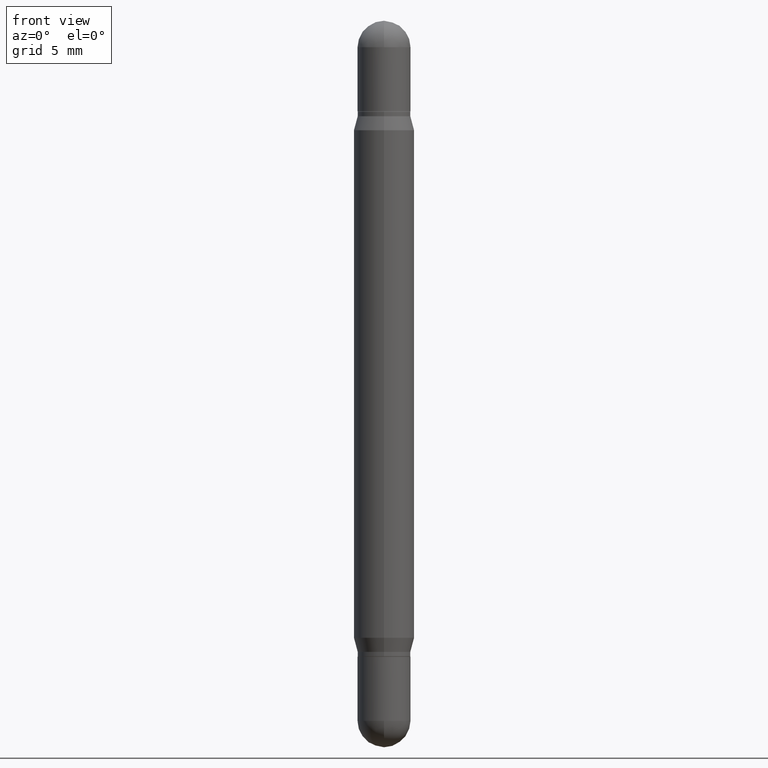
[diagram: clean part render]
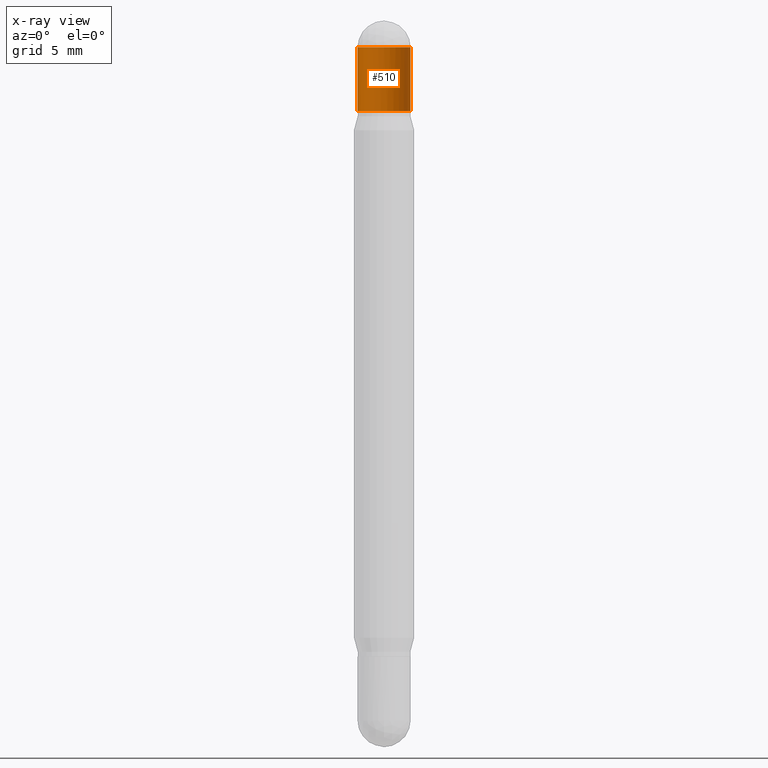
[diagram: x-ray — body ghosted, one internal face saturated and labeled with its STEP entity id]
A machine part, front view, then the same camera in x-ray: the body is ghosted and one INTERNAL B-rep face — a face not visible from any outside direction — is saturated and labeled: STEP entity #510.
In plain terms, the highlighted cylindrical surface (edge-blend (fillet) strip) has radius 1.3894 mm, axis along (-0, -0, -1).
Its self-contained STEP definition (entity closure, byte-faithful):
#1 = VERTEX_POINT ( 'NONE', #1060 ) ;
#23 = LINE ( 'NONE', #625, #884 ) ;
#33 = CARTESIAN_POINT ( 'NONE',  ( 0.05470000000000000556, -8.113796207026979199E-16, -0.05470000000000037332 ) ) ;
#35 = DIRECTION ( 'NONE',  ( 1.000000000000000000, -6.982962677686260400E-15, 0.000000000000000000 ) ) ;
#60 = EDGE_CURVE ( 'NONE', #127, #437, #23, .T. ) ;
#81 = CARTESIAN_POINT ( 'NONE',  ( 3.534436065579377749E-29, -1.992350652426753183E-16, -0.05470000000000037332 ) ) ;
#103 = DIRECTION ( 'NONE',  ( -2.445468806185136877E-29, -3.479614466977828648E-15, -1.000000000000000000 ) ) ;
#124 = DIRECTION ( 'NONE',  ( 1.000000000000000000, -6.982962677686268288E-15, 0.000000000000000000 ) ) ;
#127 = VERTEX_POINT ( 'NONE', #33 ) ;
#147 = EDGE_CURVE ( 'NONE', #501, #1027, #1118, .T. ) ;
#150 = CARTESIAN_POINT ( 'NONE',  ( -0.05469999999999999862, -4.853052613887629372E-15, -1.500000000000000444 ) ) ;
#170 = EDGE_CURVE ( 'NONE', #437, #1027, #624, .T. ) ;
#213 = DIRECTION ( 'NONE',  ( -2.445468806185136597E-29, -3.479614466977828254E-15, -1.000000000000000000 ) ) ;
#223 = CARTESIAN_POINT ( 'NONE',  ( 0.05469999999999999862, -1.041556117693281390E-15, -0.1870000000000002216 ) ) ;
#231 = AXIS2_PLACEMENT_3D ( 'NONE', #491, #333, #930 ) ;
#246 = ORIENTED_EDGE ( 'NONE', *, *, #588, .F. ) ;
#333 = DIRECTION ( 'NONE',  ( 2.445468806185136597E-29, 3.479614466977828254E-15, 1.000000000000000000 ) ) ;
#429 = EDGE_CURVE ( 'NONE', #127, #1, #777, .T. ) ;
#430 = DIRECTION ( 'NONE',  ( -2.445468806185136877E-29, -3.479614466977828648E-15, -1.000000000000000000 ) ) ;
#437 = VERTEX_POINT ( 'NONE', #223 ) ;
#462 = EDGE_LOOP ( 'NONE', ( #747, #246, #1073, #987, #692 ) ) ;
#491 = CARTESIAN_POINT ( 'NONE',  ( 3.210900542521084585E-29, -6.595880592238425060E-16, -0.1870000000000002216 ) ) ;
#501 = VERTEX_POINT ( 'NONE', #806 ) ;
#510 = ADVANCED_FACE ( 'NONE', ( #1074 ), #891, .T. ) ;
#551 = CARTESIAN_POINT ( 'NONE',  ( 0.000000000000000000, -5.228321854365732350E-15, -1.500000000000000444 ) ) ;
#588 = EDGE_CURVE ( 'NONE', #1, #501, #635, .T. ) ;
#624 = CIRCLE ( 'NONE', #231, 0.05469999999999999862 ) ;
#625 = CARTESIAN_POINT ( 'NONE',  ( 0.05469999999999999862, -5.610289912835170741E-15, -1.500000000000000444 ) ) ;
#635 = CIRCLE ( 'NONE', #867, 0.05470000000000000556 ) ;
#692 = ORIENTED_EDGE ( 'NONE', *, *, #170, .T. ) ;
#747 = ORIENTED_EDGE ( 'NONE', *, *, #147, .F. ) ;
#777 = CIRCLE ( 'NONE', #1065, 0.05470000000000000556 ) ;
#806 = CARTESIAN_POINT ( 'NONE',  ( -0.05470000000000000556, -5.414232175515625545E-17, -0.05470000000000037332 ) ) ;
#822 = CARTESIAN_POINT ( 'NONE',  ( 3.534436065579377749E-29, -1.992350652426753183E-16, -0.05470000000000037332 ) ) ;
#855 = DIRECTION ( 'NONE',  ( 1.000000000000000000, -6.982962677686268288E-15, 0.000000000000000000 ) ) ;
#867 = AXIS2_PLACEMENT_3D ( 'NONE', #81, #1094, #855 ) ;
#884 = VECTOR ( 'NONE', #103, 39.37007874015748143 ) ;
#891 = CYLINDRICAL_SURFACE ( 'NONE', #1012, 0.05469999999999999862 ) ;
#930 = DIRECTION ( 'NONE',  ( 1.000000000000000000, -6.982962677686266711E-15, 0.000000000000000000 ) ) ;
#957 = CARTESIAN_POINT ( 'NONE',  ( -0.05469999999999999862, -5.414232175515661906E-17, -0.1870000000000002216 ) ) ;
#973 = VECTOR ( 'NONE', #430, 39.37007874015748143 ) ;
#987 = ORIENTED_EDGE ( 'NONE', *, *, #60, .T. ) ;
#990 = DIRECTION ( 'NONE',  ( 2.445468806185136597E-29, 3.479614466977828254E-15, 1.000000000000000000 ) ) ;
#1012 = AXIS2_PLACEMENT_3D ( 'NONE', #551, #213, #35 ) ;
#1027 = VERTEX_POINT ( 'NONE', #957 ) ;
#1060 = CARTESIAN_POINT ( 'NONE',  ( 3.752692404781387717E-16, 0.05469999999999989454, -0.05470000000000056067 ) ) ;
#1065 = AXIS2_PLACEMENT_3D ( 'NONE', #822, #990, #124 ) ;
#1073 = ORIENTED_EDGE ( 'NONE', *, *, #429, .F. ) ;
#1074 = FACE_OUTER_BOUND ( 'NONE', #462, .T. ) ;
#1094 = DIRECTION ( 'NONE',  ( 2.445468806185136597E-29, 3.479614466977828254E-15, 1.000000000000000000 ) ) ;
#1118 = LINE ( 'NONE', #150, #973 ) ;